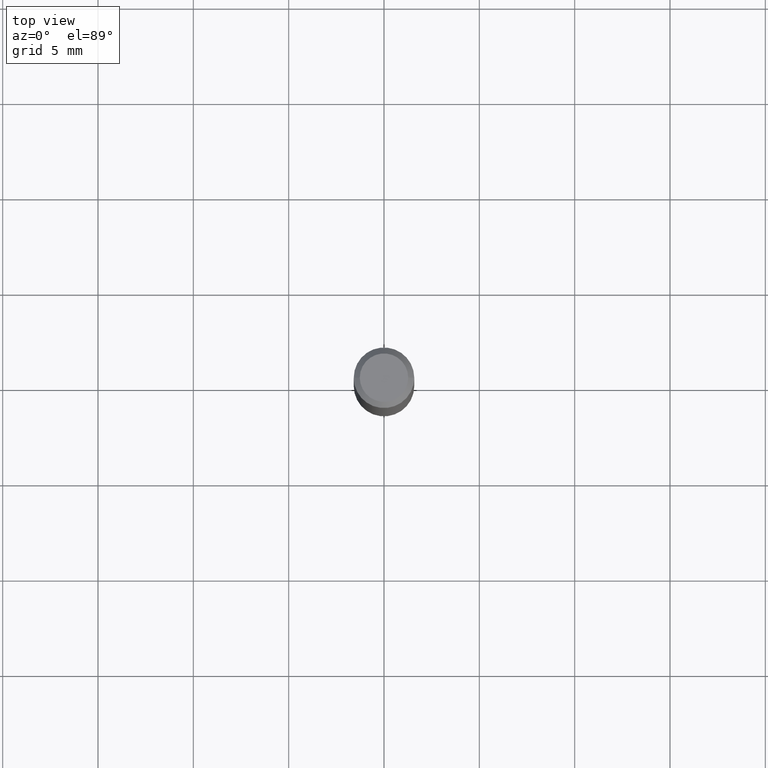
[diagram: clean part render]
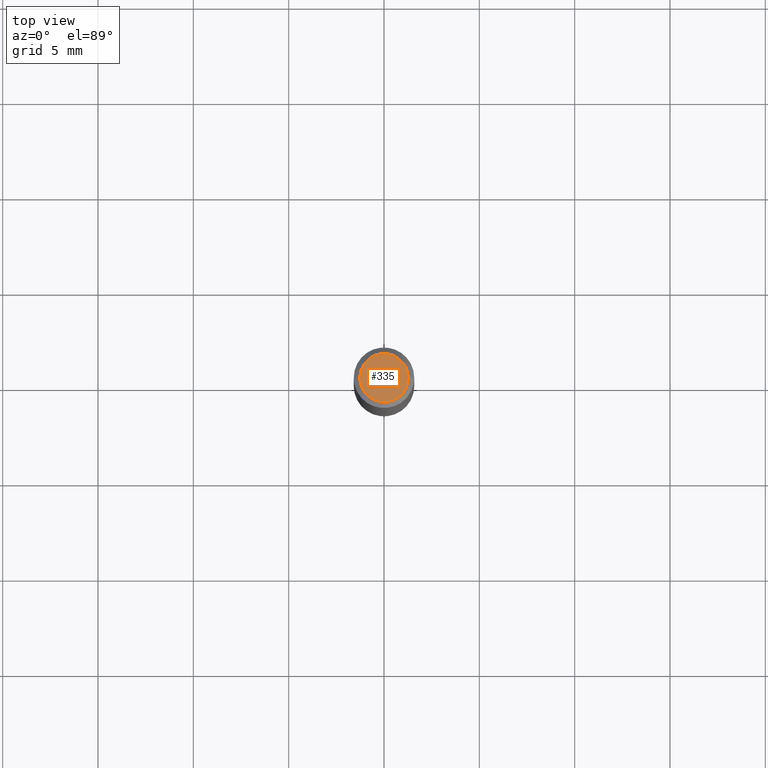
[diagram: same view with one face highlighted and labeled with its STEP entity id]
A machine part, top view. The second image highlights one B-rep face of the part: STEP entity #335.
In plain terms, the highlighted planar face has unit normal (0, -0, -1).
Its self-contained STEP definition (entity closure, byte-faithful):
#4 = VERTEX_POINT ( 'NONE', #261 ) ;
#36 = EDGE_CURVE ( 'NONE', #437, #4, #328, .T. ) ;
#57 = EDGE_CURVE ( 'NONE', #4, #437, #216, .T. ) ;
#87 = CARTESIAN_POINT ( 'NONE',  ( -0.04999999999999999584, 3.709698922520826725E-16, -1.592040838894077649E-18 ) ) ;
#123 = DIRECTION ( 'NONE',  ( -2.445468806185136597E-29, 3.491481338843145583E-15, 1.000000000000000000 ) ) ;
#156 = CARTESIAN_POINT ( 'NONE',  ( 3.893286209682126177E-47, -5.558580879666067980E-33, -1.592040838891559689E-18 ) ) ;
#198 = DIRECTION ( 'NONE',  ( 1.000000000000000000, -6.982962677686265922E-15, 4.875957971899673662E-29 ) ) ;
#211 = EDGE_LOOP ( 'NONE', ( #341, #303 ) ) ;
#216 = CIRCLE ( 'NONE', #489, 0.04999999999999999584 ) ;
#235 = CARTESIAN_POINT ( 'NONE',  ( 1.946643104841063088E-47, -2.779290439833033990E-33, -7.960204194457798443E-19 ) ) ;
#261 = CARTESIAN_POINT ( 'NONE',  ( 0.04999999999999999584, -4.077247707424184212E-16, -1.592040838888913461E-18 ) ) ;
#284 = DIRECTION ( 'NONE',  ( 1.000000000000000000, -6.982962677686265922E-15, 4.875957971899673662E-29 ) ) ;
#285 = FACE_OUTER_BOUND ( 'NONE', #211, .T. ) ;
#303 = ORIENTED_EDGE ( 'NONE', *, *, #57, .T. ) ;
#314 = PLANE ( 'NONE',  #457 ) ;
#317 = DIRECTION ( 'NONE',  ( -1.000000000000000000, 6.982962677686265922E-15, -4.876176775795935793E-29 ) ) ;
#328 = CIRCLE ( 'NONE', #373, 0.04999999999999999584 ) ;
#335 = ADVANCED_FACE ( 'NONE', ( #285 ), #314, .F. ) ;
#341 = ORIENTED_EDGE ( 'NONE', *, *, #36, .T. ) ;
#373 = AXIS2_PLACEMENT_3D ( 'NONE', #156, #469, #198 ) ;
#431 = DIRECTION ( 'NONE',  ( 2.438088387897960049E-29, -3.491481338843145188E-15, -1.000000000000000000 ) ) ;
#434 = CARTESIAN_POINT ( 'NONE',  ( 3.893286209682126177E-47, -5.558580879666067980E-33, -1.592040838891559689E-18 ) ) ;
#437 = VERTEX_POINT ( 'NONE', #87 ) ;
#457 = AXIS2_PLACEMENT_3D ( 'NONE', #235, #431, #317 ) ;
#469 = DIRECTION ( 'NONE',  ( -2.445468806185136597E-29, 3.491481338843145583E-15, 1.000000000000000000 ) ) ;
#489 = AXIS2_PLACEMENT_3D ( 'NONE', #434, #123, #284 ) ;